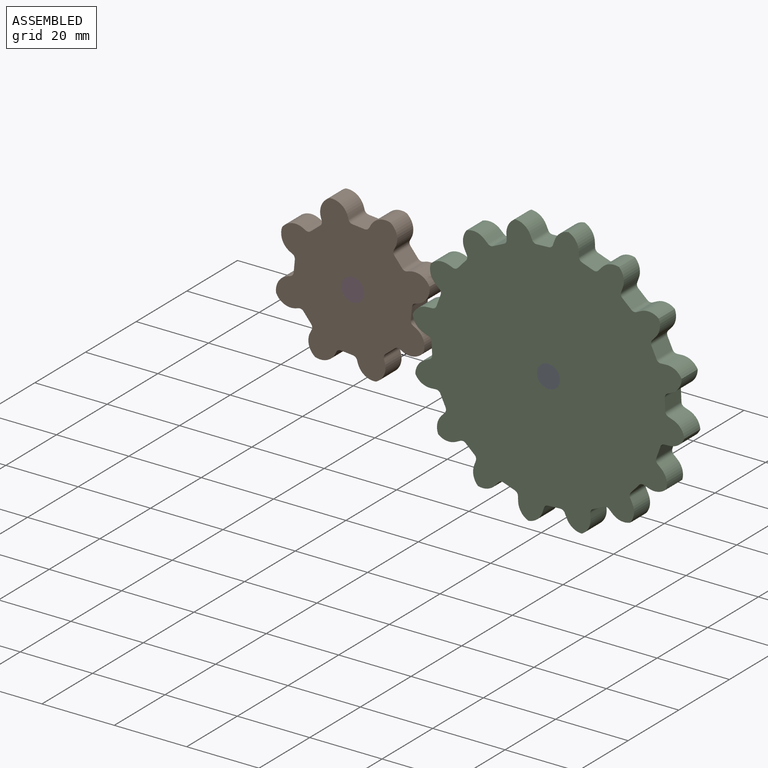
[diagram: assembled view]
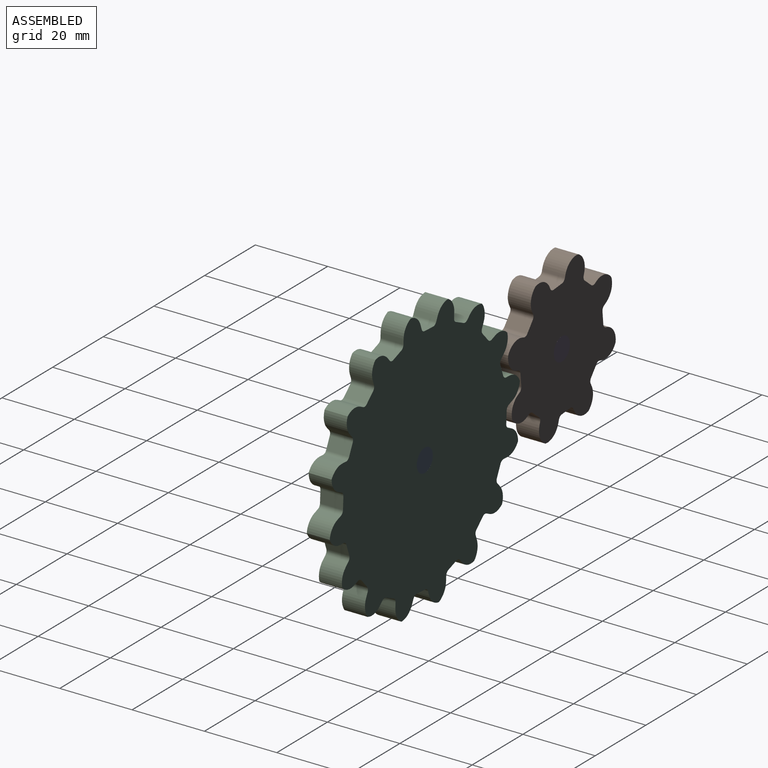
[diagram: assembled view, second angle]
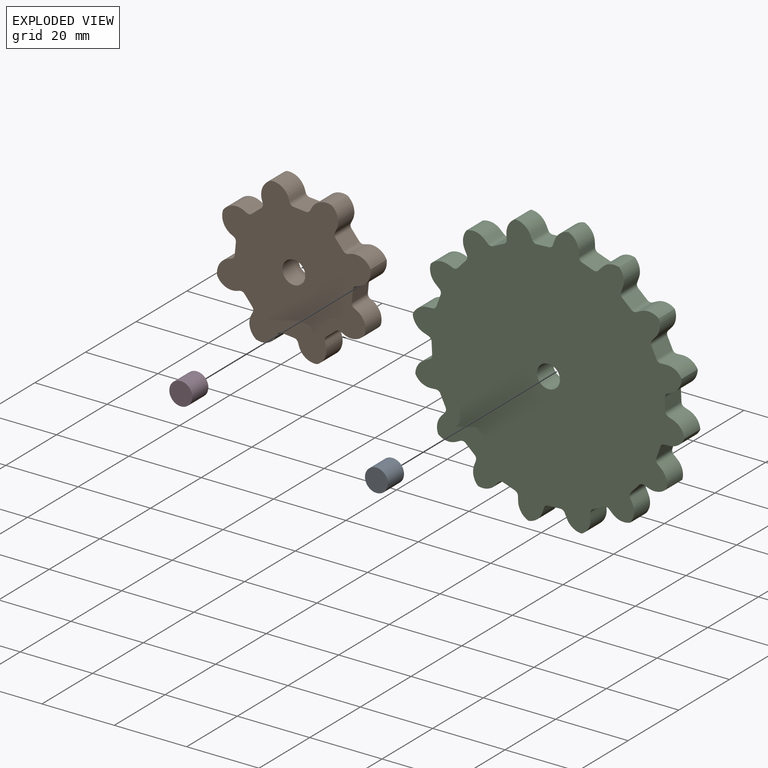
[diagram: exploded view]
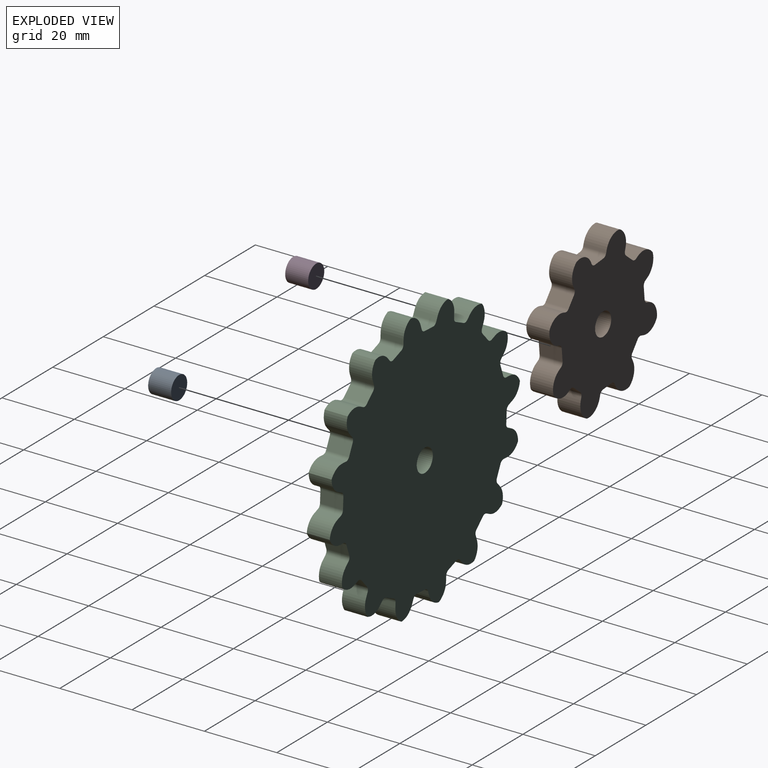
[diagram: exploded view, second angle]
ASSEMBLY  parts=4 mates=2
PART A: 3 faces, bbox 6.4x6.4x6.4 mm
  f0: cylinder r=3.17mm len=6.35mm, axis (0,1,0), area 126.7mm2, adj f1,f2
  f1: plane 6.35x6.35mm, normal (0,-1,0), area 31.7mm2, adj f0
  f2: plane 6.35x6.35mm, normal (0,1,0), area 31.7mm2, adj f0
PART B: 59 faces, bbox 41.2x6.4x41.2 mm
  f0: plane 41.21x41.21mm, normal (0,-1,0), area 1111.8mm2, adj f2,f3,f4,f5,f6,f7,f8,f9
  f1: plane 41.21x41.21mm, normal (0,1,0), area 1111.8mm2, adj f2,f3,f4,f5,f6,f7,f8,f9
  f2: plane 6.35x3.37mm, normal (0,0,1), area 21.4mm2, adj f0,f1,f3,f6
  f3: cylinder r=1.27mm len=6.35mm, axis (0,-1,0), area 9.5mm2, adj f0,f1,f2,f4
  f4: plane 6.35x0.7mm, normal (-0.93,0,0.38), area 4.8mm2, adj f0,f1,f3,f56
  f5: plane 6.35x0.7mm, normal (0.93,0,0.38), area 4.8mm2, adj f0,f1,f6,f42
  f6: cylinder r=1.27mm len=6.35mm, axis (0,-1,0), area 9.5mm2, adj f0,f1,f2,f5
  f7: plane 6.35x2.38mm, normal (0.71,0,0.71), area 21.4mm2, adj f0,f1,f8,f11
  f8: cylinder r=1.27mm len=6.35mm, axis (0,-1,0), area 9.5mm2, adj f0,f1,f7,f9
  f9: plane 6.35x0.7mm, normal (-0.39,0,0.92), area 4.8mm2, adj f0,f1,f8,f54
  f10: plane 6.35x0.7mm, normal (0.92,0,-0.39), area 4.8mm2, adj f0,f1,f11,f57
  f11: cylinder r=1.27mm len=6.35mm, axis (0,-1,0), area 9.5mm2, adj f0,f1,f7,f10
  f12: plane 6.35x3.37mm, normal (1,0,0), area 21.4mm2, adj f0,f1,f13,f16
  f13: cylinder r=1.27mm len=6.35mm, axis (0,-1,0), area 9.5mm2, adj f0,f1,f12,f14
  f14: plane 6.35x0.7mm, normal (0.38,0,0.93), area 4.8mm2, adj f0,f1,f13,f52
  f15: plane 6.35x0.7mm, normal (0.38,0,-0.93), area 4.8mm2, adj f0,f1,f16,f55
  f16: cylinder r=1.27mm len=6.35mm, axis (0,-1,0), area 9.5mm2, adj f0,f1,f12,f15
  f17: plane 6.35x2.38mm, normal (0.71,0,-0.71), area 21.4mm2, adj f0,f1,f18,f21
  f18: cylinder r=1.27mm len=6.35mm, axis (0,-1,0), area 9.5mm2, adj f0,f1,f17,f19
  f19: plane 6.35x0.7mm, normal (0.92,0,0.39), area 4.8mm2, adj f0,f1,f18,f50
  f20: plane 6.35x0.7mm, normal (-0.39,0,-0.92), area 4.8mm2, adj f0,f1,f21,f53
  f21: cylinder r=1.27mm len=6.35mm, axis (0,-1,0), area 9.5mm2, adj f0,f1,f17,f20
  f22: plane 6.35x3.37mm, normal (0,0,-1), area 21.4mm2, adj f0,f1,f23,f26
  f23: cylinder r=1.27mm len=6.35mm, axis (0,-1,0), area 9.5mm2, adj f0,f1,f22,f24
  f24: plane 6.35x0.7mm, normal (0.93,0,-0.38), area 4.8mm2, adj f0,f1,f23,f48
  f25: plane 6.35x0.7mm, normal (-0.93,0,-0.38), area 4.8mm2, adj f0,f1,f26,f51
  f26: cylinder r=1.27mm len=6.35mm, axis (0,-1,0), area 9.5mm2, adj f0,f1,f22,f25
  f27: plane 6.35x2.38mm, normal (-0.71,0,-0.71), area 21.4mm2, adj f0,f1,f28,f31
  f28: cylinder r=1.27mm len=6.35mm, axis (0,-1,0), area 9.5mm2, adj f0,f1,f27,f29
  f29: plane 6.35x0.7mm, normal (0.39,0,-0.92), area 4.8mm2, adj f0,f1,f28,f46
  f30: plane 6.35x0.7mm, normal (-0.92,0,0.39), area 4.8mm2, adj f0,f1,f31,f49
  f31: cylinder r=1.27mm len=6.35mm, axis (0,-1,0), area 9.5mm2, adj f0,f1,f27,f30
  f32: plane 6.35x3.37mm, normal (-1,0,0), area 21.4mm2, adj f0,f1,f33,f36
  f33: cylinder r=1.27mm len=6.35mm, axis (0,-1,0), area 9.5mm2, adj f0,f1,f32,f34
  f34: plane 6.35x0.7mm, normal (-0.38,0,-0.93), area 4.8mm2, adj f0,f1,f33,f44
  f35: plane 6.35x0.7mm, normal (-0.38,0,0.93), area 4.8mm2, adj f0,f1,f36,f47
  f36: cylinder r=1.27mm len=6.35mm, axis (0,-1,0), area 9.5mm2, adj f0,f1,f32,f35
  f37: plane 6.35x2.38mm, normal (-0.71,0,0.71), area 21.4mm2, adj f0,f1,f38,f41
  f38: cylinder r=1.27mm len=6.35mm, axis (0,-1,0), area 9.5mm2, adj f0,f1,f37,f39
  f39: plane 6.35x0.7mm, normal (-0.92,0,-0.39), area 4.8mm2, adj f0,f1,f38,f43
  f40: plane 6.35x0.7mm, normal (0.39,0,0.92), area 4.8mm2, adj f0,f1,f41,f45
  f41: cylinder r=1.27mm len=6.35mm, axis (0,-1,0), area 9.5mm2, adj f0,f1,f37,f40
  f42: cylinder r=4.57mm len=6.35mm, axis (0,-1,0), area 41.4mm2, adj f0,f1,f5,f43
  f43: cylinder r=4.57mm len=6.35mm, axis (0,-1,0), area 41.4mm2, adj f0,f1,f39,f42
  f44: cylinder r=4.57mm len=6.35mm, axis (0,-1,0), area 41.4mm2, adj f0,f1,f34,f45
  f45: cylinder r=4.57mm len=6.35mm, axis (0,-1,0), area 41.4mm2, adj f0,f1,f40,f44
  f46: cylinder r=4.57mm len=6.35mm, axis (0,-1,0), area 41.4mm2, adj f0,f1,f29,f47
  f47: cylinder r=4.57mm len=6.35mm, axis (0,-1,0), area 41.4mm2, adj f0,f1,f35,f46
  f48: cylinder r=4.57mm len=6.35mm, axis (0,-1,0), area 41.4mm2, adj f0,f1,f24,f49
  f49: cylinder r=4.57mm len=6.35mm, axis (0,-1,0), area 41.4mm2, adj f0,f1,f30,f48
  f50: cylinder r=4.57mm len=6.35mm, axis (0,-1,0), area 41.4mm2, adj f0,f1,f19,f51
  f51: cylinder r=4.57mm len=6.35mm, axis (0,-1,0), area 41.4mm2, adj f0,f1,f25,f50
  f52: cylinder r=4.57mm len=6.35mm, axis (0,-1,0), area 41.4mm2, adj f0,f1,f14,f53
  f53: cylinder r=4.57mm len=6.35mm, axis (0,-1,0), area 41.4mm2, adj f0,f1,f20,f52
  f54: cylinder r=4.57mm len=6.35mm, axis (0,-1,0), area 41.4mm2, adj f0,f1,f9,f55
  f55: cylinder r=4.57mm len=6.35mm, axis (0,-1,0), area 41.4mm2, adj f0,f1,f15,f54
  f56: cylinder r=4.57mm len=6.35mm, axis (0,-1,0), area 41.4mm2, adj f0,f1,f4,f57
  f57: cylinder r=4.57mm len=6.35mm, axis (0,-1,0), area 41.4mm2, adj f0,f1,f10,f56
  f58: cylinder r=3.17mm len=6.35mm, axis (0,-1,0), area 126.7mm2, adj f0,f1
PART C: 115 faces, bbox 74.4x6.4x74.4 mm
  f0: plane 74.43x74.43mm, normal (0,-1,0), area 3764.9mm2, adj f2,f3,f4,f5,f6,f7,f8,f9
  f1: plane 74.43x74.43mm, normal (0,1,0), area 3764.9mm2, adj f2,f3,f4,f5,f6,f7,f8,f9
  f2: plane 6.35x3.37mm, normal (0,0,1), area 21.4mm2, adj f0,f1,f3,f6
  f3: cylinder r=1.27mm len=6.35mm, axis (0,-1,0), area 9.5mm2, adj f0,f1,f2,f4
  f4: plane 6.35x1.32mm, normal (-0.93,0,0.38), area 9mm2, adj f0,f1,f3,f112
  f5: plane 6.35x1.32mm, normal (0.93,0,0.38), area 9mm2, adj f0,f1,f6,f82
  f6: cylinder r=1.27mm len=6.35mm, axis (0,-1,0), area 9.5mm2, adj f0,f1,f2,f5
  f7: plane 6.35x3.12mm, normal (0.38,0,0.92), area 21.4mm2, adj f0,f1,f8,f11
  f8: cylinder r=1.27mm len=6.35mm, axis (0,-1,0), area 9.5mm2, adj f0,f1,f7,f9
  f9: plane 6.35x1.01mm, normal (-0.71,0,0.7), area 9mm2, adj f0,f1,f8,f110
  f10: plane 6.35x1.42mm, normal (1,0,-0.01), area 9mm2, adj f0,f1,f11,f113
  f11: cylinder r=1.27mm len=6.35mm, axis (0,-1,0), area 9.5mm2, adj f0,f1,f7,f10
  f12: plane 6.35x2.38mm, normal (0.71,0,0.71), area 21.4mm2, adj f0,f1,f13,f16
  f13: cylinder r=1.27mm len=6.35mm, axis (0,-1,0), area 9.5mm2, adj f0,f1,f12,f14
  f14: plane 6.35x1.31mm, normal (-0.39,0,0.92), area 9mm2, adj f0,f1,f13,f108
  f15: plane 6.35x1.31mm, normal (0.92,0,-0.39), area 9mm2, adj f0,f1,f16,f111
  f16: cylinder r=1.27mm len=6.35mm, axis (0,-1,0), area 9.5mm2, adj f0,f1,f12,f15
  f17: plane 6.35x3.12mm, normal (0.92,0,0.38), area 21.4mm2, adj f0,f1,f18,f21
  f18: cylinder r=1.27mm len=6.35mm, axis (0,-1,0), area 9.5mm2, adj f0,f1,f17,f19
  f19: plane 6.35x1.42mm, normal (-0.01,0,1), area 9mm2, adj f0,f1,f18,f106
  f20: plane 6.35x1.01mm, normal (0.7,0,-0.71), area 9mm2, adj f0,f1,f21,f109
  f21: cylinder r=1.27mm len=6.35mm, axis (0,-1,0), area 9.5mm2, adj f0,f1,f17,f20
  f22: plane 6.35x3.37mm, normal (1,0,0), area 21.4mm2, adj f0,f1,f23,f26
  f23: cylinder r=1.27mm len=6.35mm, axis (0,-1,0), area 9.5mm2, adj f0,f1,f22,f24
  f24: plane 6.35x1.32mm, normal (0.38,0,0.93), area 9mm2, adj f0,f1,f23,f104
  f25: plane 6.35x1.32mm, normal (0.38,0,-0.93), area 9mm2, adj f0,f1,f26,f107
  f26: cylinder r=1.27mm len=6.35mm, axis (0,-1,0), area 9.5mm2, adj f0,f1,f22,f25
  f27: plane 6.35x3.12mm, normal (0.92,0,-0.38), area 21.4mm2, adj f0,f1,f28,f31
  f28: cylinder r=1.27mm len=6.35mm, axis (0,-1,0), area 9.5mm2, adj f0,f1,f27,f29
  f29: plane 6.35x1.01mm, normal (0.7,0,0.71), area 9mm2, adj f0,f1,f28,f102
  f30: plane 6.35x1.42mm, normal (-0.01,0,-1), area 9mm2, adj f0,f1,f31,f105
  f31: cylinder r=1.27mm len=6.35mm, axis (0,-1,0), area 9.5mm2, adj f0,f1,f27,f30
  f32: plane 6.35x2.38mm, normal (0.71,0,-0.71), area 21.4mm2, adj f0,f1,f33,f36
  f33: cylinder r=1.27mm len=6.35mm, axis (0,-1,0), area 9.5mm2, adj f0,f1,f32,f34
  f34: plane 6.35x1.31mm, normal (0.92,0,0.39), area 9mm2, adj f0,f1,f33,f100
  f35: plane 6.35x1.31mm, normal (-0.39,0,-0.92), area 9mm2, adj f0,f1,f36,f103
  f36: cylinder r=1.27mm len=6.35mm, axis (0,-1,0), area 9.5mm2, adj f0,f1,f32,f35
  f37: plane 6.35x3.12mm, normal (0.38,0,-0.92), area 21.4mm2, adj f0,f1,f38,f41
  f38: cylinder r=1.27mm len=6.35mm, axis (0,-1,0), area 9.5mm2, adj f0,f1,f37,f39
  f39: plane 6.35x1.42mm, normal (1,0,0.01), area 9mm2, adj f0,f1,f38,f98
  f40: plane 6.35x1.01mm, normal (-0.71,0,-0.7), area 9mm2, adj f0,f1,f41,f101
  f41: cylinder r=1.27mm len=6.35mm, axis (0,-1,0), area 9.5mm2, adj f0,f1,f37,f40
  f42: plane 6.35x3.37mm, normal (0,0,-1), area 21.4mm2, adj f0,f1,f43,f46
  f43: cylinder r=1.27mm len=6.35mm, axis (0,-1,0), area 9.5mm2, adj f0,f1,f42,f44
  f44: plane 6.35x1.32mm, normal (0.93,0,-0.38), area 9mm2, adj f0,f1,f43,f96
  f45: plane 6.35x1.32mm, normal (-0.93,0,-0.38), area 9mm2, adj f0,f1,f46,f99
  f46: cylinder r=1.27mm len=6.35mm, axis (0,-1,0), area 9.5mm2, adj f0,f1,f42,f45
  f47: plane 6.35x3.12mm, normal (-0.38,0,-0.92), area 21.4mm2, adj f0,f1,f48,f51
  f48: cylinder r=1.27mm len=6.35mm, axis (0,-1,0), area 9.5mm2, adj f0,f1,f47,f49
  f49: plane 6.35x1.01mm, normal (0.71,0,-0.7), area 9mm2, adj f0,f1,f48,f94
  f50: plane 6.35x1.42mm, normal (-1,0,0.01), area 9mm2, adj f0,f1,f51,f97
  f51: cylinder r=1.27mm len=6.35mm, axis (0,-1,0), area 9.5mm2, adj f0,f1,f47,f50
  f52: plane 6.35x2.38mm, normal (-0.71,0,-0.71), area 21.4mm2, adj f0,f1,f53,f56
  f53: cylinder r=1.27mm len=6.35mm, axis (0,-1,0), area 9.5mm2, adj f0,f1,f52,f54
  f54: plane 6.35x1.31mm, normal (0.39,0,-0.92), area 9mm2, adj f0,f1,f53,f92
  f55: plane 6.35x1.31mm, normal (-0.92,0,0.39), area 9mm2, adj f0,f1,f56,f95
  f56: cylinder r=1.27mm len=6.35mm, axis (0,-1,0), area 9.5mm2, adj f0,f1,f52,f55
  f57: plane 6.35x3.12mm, normal (-0.92,0,-0.38), area 21.4mm2, adj f0,f1,f58,f61
  f58: cylinder r=1.27mm len=6.35mm, axis (0,-1,0), area 9.5mm2, adj f0,f1,f57,f59
  f59: plane 6.35x1.42mm, normal (0.01,0,-1), area 9mm2, adj f0,f1,f58,f90
  f60: plane 6.35x1.01mm, normal (-0.7,0,0.71), area 9mm2, adj f0,f1,f61,f93
  f61: cylinder r=1.27mm len=6.35mm, axis (0,-1,0), area 9.5mm2, adj f0,f1,f57,f60
  f62: plane 6.35x3.37mm, normal (-1,0,0), area 21.4mm2, adj f0,f1,f63,f66
  f63: cylinder r=1.27mm len=6.35mm, axis (0,-1,0), area 9.5mm2, adj f0,f1,f62,f64
  f64: plane 6.35x1.32mm, normal (-0.38,0,-0.93), area 9mm2, adj f0,f1,f63,f88
  f65: plane 6.35x1.32mm, normal (-0.38,0,0.93), area 9mm2, adj f0,f1,f66,f91
  f66: cylinder r=1.27mm len=6.35mm, axis (0,-1,0), area 9.5mm2, adj f0,f1,f62,f65
  f67: plane 6.35x3.12mm, normal (-0.92,0,0.38), area 21.4mm2, adj f0,f1,f68,f71
  f68: cylinder r=1.27mm len=6.35mm, axis (0,-1,0), area 9.5mm2, adj f0,f1,f67,f69
  f69: plane 6.35x1.01mm, normal (-0.7,0,-0.71), area 9mm2, adj f0,f1,f68,f86
  f70: plane 6.35x1.42mm, normal (0.01,0,1), area 9mm2, adj f0,f1,f71,f89
  f71: cylinder r=1.27mm len=6.35mm, axis (0,-1,0), area 9.5mm2, adj f0,f1,f67,f70
  f72: plane 6.35x2.38mm, normal (-0.71,0,0.71), area 21.4mm2, adj f0,f1,f73,f76
  f73: cylinder r=1.27mm len=6.35mm, axis (0,-1,0), area 9.5mm2, adj f0,f1,f72,f74
  f74: plane 6.35x1.31mm, normal (-0.92,0,-0.39), area 9mm2, adj f0,f1,f73,f84
  f75: plane 6.35x1.31mm, normal (0.39,0,0.92), area 9mm2, adj f0,f1,f76,f87
  f76: cylinder r=1.27mm len=6.35mm, axis (0,-1,0), area 9.5mm2, adj f0,f1,f72,f75
  f77: plane 6.35x3.12mm, normal (-0.38,0,0.92), area 21.4mm2, adj f0,f1,f78,f81
  f78: cylinder r=1.27mm len=6.35mm, axis (0,-1,0), area 9.5mm2, adj f0,f1,f77,f79
  f79: plane 6.35x1.42mm, normal (-1,0,-0.01), area 9mm2, adj f0,f1,f78,f83
  f80: plane 6.35x1.01mm, normal (0.71,0,0.7), area 9mm2, adj f0,f1,f81,f85
  f81: cylinder r=1.27mm len=6.35mm, axis (0,-1,0), area 9.5mm2, adj f0,f1,f77,f80
  f82: cylinder r=4.57mm len=6.35mm, axis (0,-1,0), area 32.9mm2, adj f0,f1,f5,f83
  f83: cylinder r=4.57mm len=6.35mm, axis (0,-1,0), area 32.9mm2, adj f0,f1,f79,f82
  f84: cylinder r=4.57mm len=6.35mm, axis (0,-1,0), area 32.9mm2, adj f0,f1,f74,f85
  f85: cylinder r=4.57mm len=6.35mm, axis (0,-1,0), area 32.9mm2, adj f0,f1,f80,f84
  f86: cylinder r=4.57mm len=6.35mm, axis (0,-1,0), area 32.9mm2, adj f0,f1,f69,f87
  f87: cylinder r=4.57mm len=6.35mm, axis (0,-1,0), area 32.9mm2, adj f0,f1,f75,f86
  f88: cylinder r=4.57mm len=6.35mm, axis (0,-1,0), area 32.9mm2, adj f0,f1,f64,f89
  f89: cylinder r=4.57mm len=6.35mm, axis (0,-1,0), area 32.9mm2, adj f0,f1,f70,f88
  f90: cylinder r=4.57mm len=6.35mm, axis (0,-1,0), area 32.9mm2, adj f0,f1,f59,f91
  f91: cylinder r=4.57mm len=6.35mm, axis (0,-1,0), area 32.9mm2, adj f0,f1,f65,f90
  f92: cylinder r=4.57mm len=6.35mm, axis (0,-1,0), area 32.9mm2, adj f0,f1,f54,f93
  f93: cylinder r=4.57mm len=6.35mm, axis (0,-1,0), area 32.9mm2, adj f0,f1,f60,f92
  f94: cylinder r=4.57mm len=6.35mm, axis (0,-1,0), area 32.9mm2, adj f0,f1,f49,f95
  f95: cylinder r=4.57mm len=6.35mm, axis (0,-1,0), area 32.9mm2, adj f0,f1,f55,f94
  f96: cylinder r=4.57mm len=6.35mm, axis (0,-1,0), area 32.9mm2, adj f0,f1,f44,f97
  f97: cylinder r=4.57mm len=6.35mm, axis (0,-1,0), area 32.9mm2, adj f0,f1,f50,f96
  f98: cylinder r=4.57mm len=6.35mm, axis (0,-1,0), area 32.9mm2, adj f0,f1,f39,f99
  f99: cylinder r=4.57mm len=6.35mm, axis (0,-1,0), area 32.9mm2, adj f0,f1,f45,f98
  f100: cylinder r=4.57mm len=6.35mm, axis (0,-1,0), area 32.9mm2, adj f0,f1,f34,f101
  f101: cylinder r=4.57mm len=6.35mm, axis (0,-1,0), area 32.9mm2, adj f0,f1,f40,f100
  f102: cylinder r=4.57mm len=6.35mm, axis (0,-1,0), area 32.9mm2, adj f0,f1,f29,f103
  f103: cylinder r=4.57mm len=6.35mm, axis (0,-1,0), area 32.9mm2, adj f0,f1,f35,f102
  f104: cylinder r=4.57mm len=6.35mm, axis (0,-1,0), area 32.9mm2, adj f0,f1,f24,f105
  f105: cylinder r=4.57mm len=6.35mm, axis (0,-1,0), area 32.9mm2, adj f0,f1,f30,f104
  f106: cylinder r=4.57mm len=6.35mm, axis (0,-1,0), area 32.9mm2, adj f0,f1,f19,f107
  f107: cylinder r=4.57mm len=6.35mm, axis (0,-1,0), area 32.9mm2, adj f0,f1,f25,f106
  f108: cylinder r=4.57mm len=6.35mm, axis (0,-1,0), area 32.9mm2, adj f0,f1,f14,f109
  f109: cylinder r=4.57mm len=6.35mm, axis (0,-1,0), area 32.9mm2, adj f0,f1,f20,f108
  f110: cylinder r=4.57mm len=6.35mm, axis (0,-1,0), area 32.9mm2, adj f0,f1,f9,f111
  f111: cylinder r=4.57mm len=6.35mm, axis (0,-1,0), area 32.9mm2, adj f0,f1,f15,f110
  f112: cylinder r=4.57mm len=6.35mm, axis (0,-1,0), area 32.9mm2, adj f0,f1,f4,f113
  f113: cylinder r=4.57mm len=6.35mm, axis (0,-1,0), area 32.9mm2, adj f0,f1,f10,f112
  f114: cylinder r=3.17mm len=6.35mm, axis (0,-1,0), area 126.7mm2, adj f0,f1
PART D: same geometry as A
PLACE A t=(2.01,6.31,24.42)mm fixed
PLACE B rot(axis=(0,-1,0),84.4deg) t=(-29.96,-0.03,29.41)mm
PLACE C rot(axis=(0,1,0),132.2deg) t=(-26.23,-0.04,50.01)mm
PLACE D t=(-52.08,6.32,31.59)mm fixed
MATE revolute C.f114 <-> A.f0  axis (0,-1,0) through (2.01,-0.04,24.42)mm
MATE revolute B.f58 <-> D.f0  axis (0,-1,0) through (-52.08,-0.03,31.59)mm
